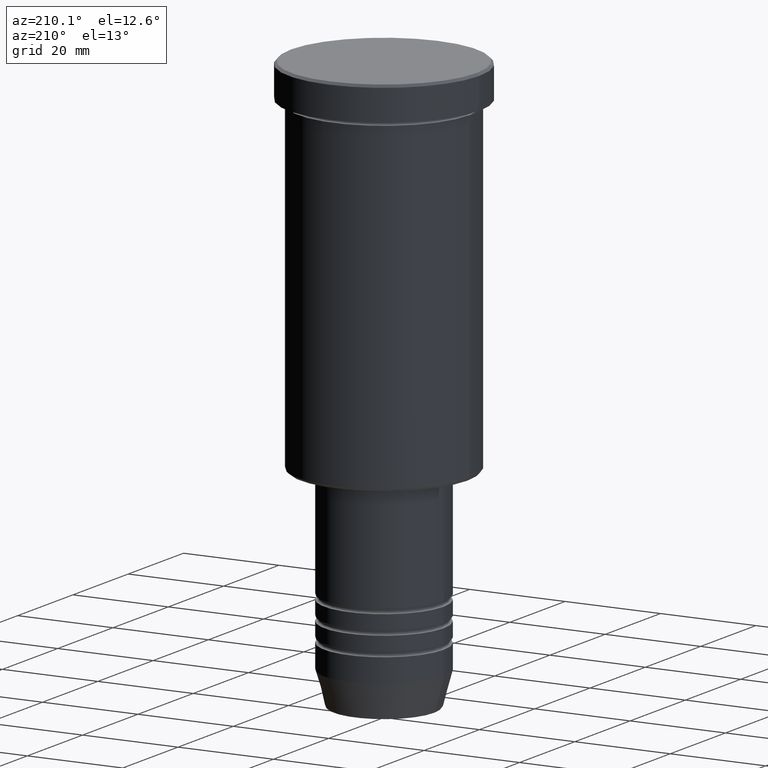
[diagram: clean part render]
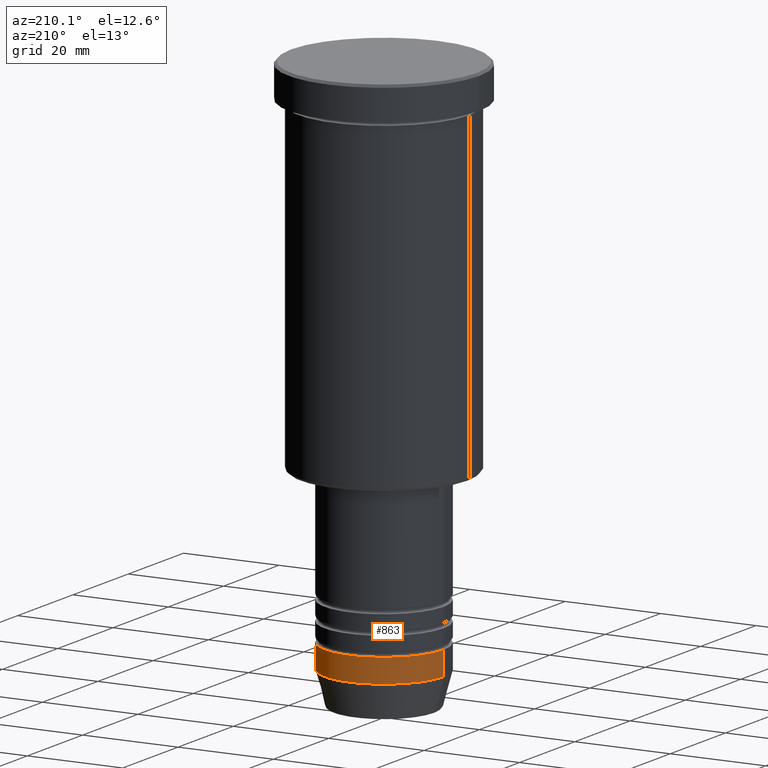
[diagram: same view with one face highlighted and labeled with its STEP entity id]
A machine part, auxiliary view. The second image highlights one B-rep face of the part: STEP entity #863.
In plain terms, the highlighted cylindrical surface (partial cylindrical patch) has radius 12.5 mm, axis along (-0, -0, 1).
Its self-contained STEP definition (entity closure, byte-faithful):
#4 = VERTEX_POINT ( 'NONE', #727 ) ;
#9 = LINE ( 'NONE', #856, #435 ) ;
#17 = FACE_OUTER_BOUND ( 'NONE', #980, .T. ) ;
#45 = ORIENTED_EDGE ( 'NONE', *, *, #431, .T. ) ;
#110 = AXIS2_PLACEMENT_3D ( 'NONE', #1043, #1046, #324 ) ;
#114 = DIRECTION ( 'NONE',  ( -0.000000000000000000, -0.000000000000000000, 1.000000000000000000 ) ) ;
#180 = CARTESIAN_POINT ( 'NONE',  ( 12.50000000000000000, 0.000000000000000000, -112.9999999999999858 ) ) ;
#198 = AXIS2_PLACEMENT_3D ( 'NONE', #1028, #502, #1032 ) ;
#233 = VERTEX_POINT ( 'NONE', #655 ) ;
#267 = LINE ( 'NONE', #509, #1067 ) ;
#324 = DIRECTION ( 'NONE',  ( 1.000000000000000000, 0.000000000000000000, 0.000000000000000000 ) ) ;
#343 = ORIENTED_EDGE ( 'NONE', *, *, #460, .F. ) ;
#387 = CIRCLE ( 'NONE', #110, 12.50000000000000000 ) ;
#397 = CYLINDRICAL_SURFACE ( 'NONE', #198, 12.50000000000000000 ) ;
#431 = EDGE_CURVE ( 'NONE', #623, #4, #917, .T. ) ;
#435 = VECTOR ( 'NONE', #676, 1000.000000000000000 ) ;
#456 = CARTESIAN_POINT ( 'NONE',  ( 0.000000000000000000, 0.000000000000000000, -112.9999999999999858 ) ) ;
#460 = EDGE_CURVE ( 'NONE', #623, #233, #267, .T. ) ;
#464 = DIRECTION ( 'NONE',  ( 1.000000000000000000, 0.000000000000000000, 0.000000000000000000 ) ) ;
#502 = DIRECTION ( 'NONE',  ( -0.000000000000000000, -0.000000000000000000, 1.000000000000000000 ) ) ;
#509 = CARTESIAN_POINT ( 'NONE',  ( 12.50000000000000000, 0.000000000000000000, 0.000000000000000000 ) ) ;
#623 = VERTEX_POINT ( 'NONE', #180 ) ;
#655 = CARTESIAN_POINT ( 'NONE',  ( 12.50000000000000000, 0.000000000000000000, -107.9999999999999858 ) ) ;
#672 = ORIENTED_EDGE ( 'NONE', *, *, #1130, .F. ) ;
#676 = DIRECTION ( 'NONE',  ( -0.000000000000000000, -0.000000000000000000, 1.000000000000000000 ) ) ;
#690 = EDGE_CURVE ( 'NONE', #4, #1172, #9, .T. ) ;
#727 = CARTESIAN_POINT ( 'NONE',  ( -12.50000000000000000, 1.530808498934191521E-15, -112.9999999999999858 ) ) ;
#820 = ORIENTED_EDGE ( 'NONE', *, *, #690, .T. ) ;
#856 = CARTESIAN_POINT ( 'NONE',  ( -12.50000000000000000, 1.530808498934191521E-15, 0.000000000000000000 ) ) ;
#863 = ADVANCED_FACE ( 'NONE', ( #17 ), #397, .T. ) ;
#873 = CARTESIAN_POINT ( 'NONE',  ( -12.50000000000000000, 1.530808498934191521E-15, -107.9999999999999858 ) ) ;
#892 = DIRECTION ( 'NONE',  ( -0.000000000000000000, -0.000000000000000000, 1.000000000000000000 ) ) ;
#917 = CIRCLE ( 'NONE', #1149, 12.50000000000000000 ) ;
#980 = EDGE_LOOP ( 'NONE', ( #45, #820, #672, #343 ) ) ;
#1028 = CARTESIAN_POINT ( 'NONE',  ( 0.000000000000000000, 0.000000000000000000, 0.000000000000000000 ) ) ;
#1032 = DIRECTION ( 'NONE',  ( 1.000000000000000000, 0.000000000000000000, 0.000000000000000000 ) ) ;
#1043 = CARTESIAN_POINT ( 'NONE',  ( 0.000000000000000000, 0.000000000000000000, -107.9999999999999858 ) ) ;
#1046 = DIRECTION ( 'NONE',  ( -0.000000000000000000, -0.000000000000000000, 1.000000000000000000 ) ) ;
#1067 = VECTOR ( 'NONE', #114, 1000.000000000000000 ) ;
#1130 = EDGE_CURVE ( 'NONE', #233, #1172, #387, .T. ) ;
#1149 = AXIS2_PLACEMENT_3D ( 'NONE', #456, #892, #464 ) ;
#1172 = VERTEX_POINT ( 'NONE', #873 ) ;